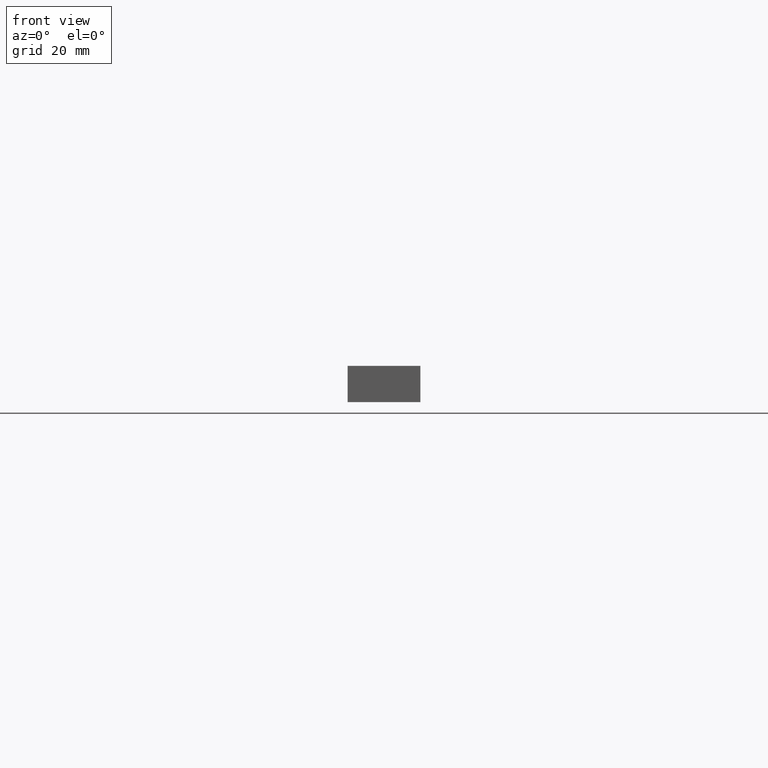
[diagram: clean part render]
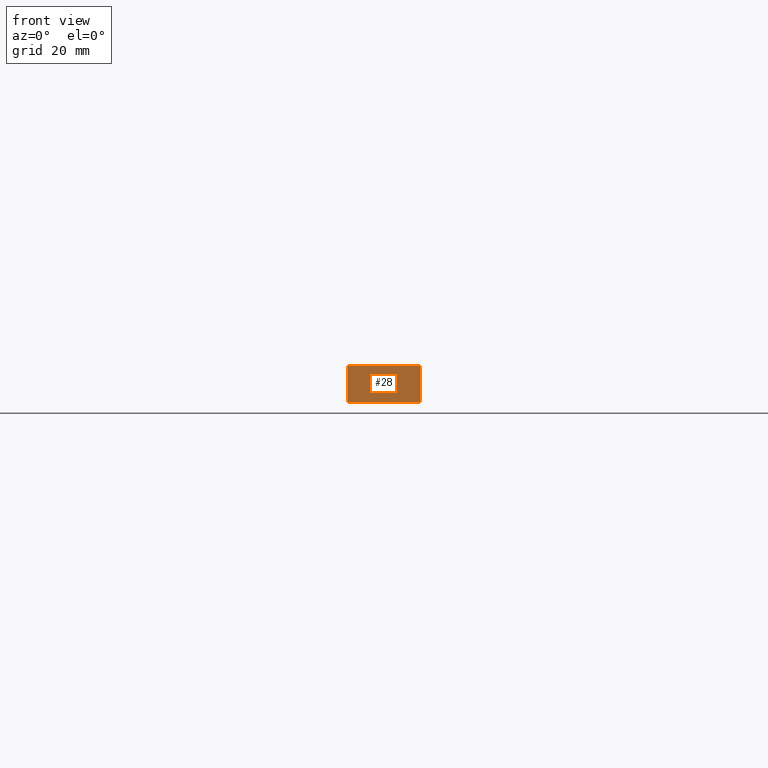
[diagram: same view with one face highlighted and labeled with its STEP entity id]
A machine part, front view. The second image highlights one B-rep face of the part: STEP entity #28.
In plain terms, the highlighted planar face has unit normal (0, 1, 0).
Its self-contained STEP definition (entity closure, byte-faithful):
#11 = VECTOR ( 'NONE', #39, 1000.000000000000000 ) ;
#13 = CARTESIAN_POINT ( 'NONE',  ( 0.0000000000000000000, 0.0000000000000000000, 10.00000000000000000 ) ) ;
#25 = CARTESIAN_POINT ( 'NONE',  ( 20.00000000000000000, 0.0000000000000000000, 0.0000000000000000000 ) ) ;
#26 = PLANE ( 'NONE',  #83 ) ;
#28 = ADVANCED_FACE ( 'NONE', ( #116 ), #26, .F. ) ;
#31 = VECTOR ( 'NONE', #131, 1000.000000000000000 ) ;
#39 = DIRECTION ( 'NONE',  ( 1.000000000000000000, -0.0000000000000000000, -0.0000000000000000000 ) ) ;
#40 = CARTESIAN_POINT ( 'NONE',  ( 0.0000000000000000000, 0.0000000000000000000, 0.0000000000000000000 ) ) ;
#46 = VERTEX_POINT ( 'NONE', #141 ) ;
#49 = VECTOR ( 'NONE', #92, 1000.000000000000000 ) ;
#62 = LINE ( 'NONE', #25, #146 ) ;
#72 = DIRECTION ( 'NONE',  ( -0.0000000000000000000, -0.0000000000000000000, 1.000000000000000000 ) ) ;
#77 = ORIENTED_EDGE ( 'NONE', *, *, #95, .T. ) ;
#81 = ORIENTED_EDGE ( 'NONE', *, *, #170, .T. ) ;
#83 = AXIS2_PLACEMENT_3D ( 'NONE', #164, #120, #167 ) ;
#90 = CARTESIAN_POINT ( 'NONE',  ( 20.00000000000000000, 0.0000000000000000000, 10.00000000000000000 ) ) ;
#92 = DIRECTION ( 'NONE',  ( -1.000000000000000000, -0.0000000000000000000, -0.0000000000000000000 ) ) ;
#95 = EDGE_CURVE ( 'NONE', #46, #175, #148, .T. ) ;
#96 = VERTEX_POINT ( 'NONE', #214 ) ;
#103 = ORIENTED_EDGE ( 'NONE', *, *, #129, .T. ) ;
#111 = LINE ( 'NONE', #13, #49 ) ;
#116 = FACE_OUTER_BOUND ( 'NONE', #195, .T. ) ;
#118 = ORIENTED_EDGE ( 'NONE', *, *, #211, .T. ) ;
#120 = DIRECTION ( 'NONE',  ( -0.0000000000000000000, 1.000000000000000000, 0.0000000000000000000 ) ) ;
#129 = EDGE_CURVE ( 'NONE', #175, #237, #62, .T. ) ;
#131 = DIRECTION ( 'NONE',  ( -0.0000000000000000000, -0.0000000000000000000, -1.000000000000000000 ) ) ;
#132 = CARTESIAN_POINT ( 'NONE',  ( 0.0000000000000000000, 0.0000000000000000000, 0.0000000000000000000 ) ) ;
#141 = CARTESIAN_POINT ( 'NONE',  ( 0.0000000000000000000, 0.0000000000000000000, 0.0000000000000000000 ) ) ;
#146 = VECTOR ( 'NONE', #72, 1000.000000000000000 ) ;
#147 = LINE ( 'NONE', #132, #31 ) ;
#148 = LINE ( 'NONE', #40, #11 ) ;
#164 = CARTESIAN_POINT ( 'NONE',  ( 0.0000000000000000000, 0.0000000000000000000, 0.0000000000000000000 ) ) ;
#167 = DIRECTION ( 'NONE',  ( 1.000000000000000000, 0.0000000000000000000, 0.0000000000000000000 ) ) ;
#170 = EDGE_CURVE ( 'NONE', #237, #96, #111, .T. ) ;
#175 = VERTEX_POINT ( 'NONE', #215 ) ;
#195 = EDGE_LOOP ( 'NONE', ( #77, #103, #81, #118 ) ) ;
#211 = EDGE_CURVE ( 'NONE', #96, #46, #147, .T. ) ;
#214 = CARTESIAN_POINT ( 'NONE',  ( 0.0000000000000000000, 0.0000000000000000000, 10.00000000000000000 ) ) ;
#215 = CARTESIAN_POINT ( 'NONE',  ( 20.00000000000000000, 0.0000000000000000000, 0.0000000000000000000 ) ) ;
#237 = VERTEX_POINT ( 'NONE', #90 ) ;